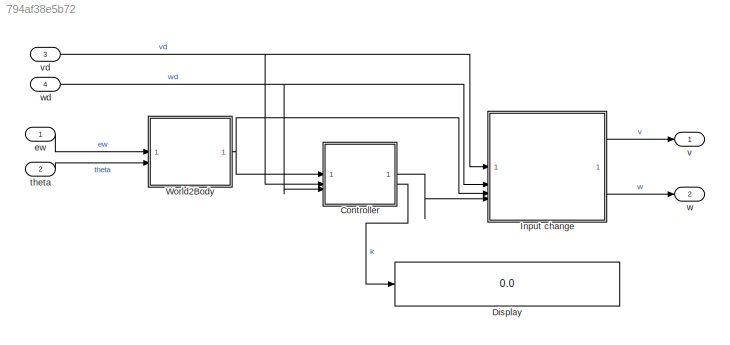
MODEL slx_794af38e5b72
KIND model
CONFIG AbsTol = auto
CONFIG EnableMultiTasking = off
CONFIG FixedStep = auto
CONFIG MaxStep = auto
CONFIG MinStep = auto
CONFIG RelTol = 1e-3
CONFIG SampleTimeConstraint = Unconstrained
CONFIG SolverName = VariableStepAuto
CONFIG StartTime = 0.0
CONFIG StopTime = 10.0
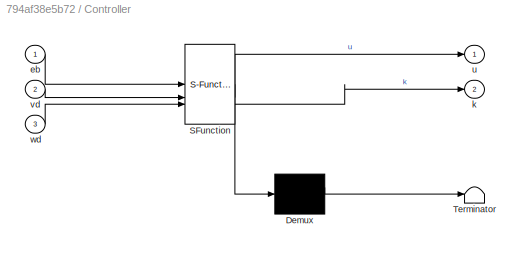
BLOCK [SubSystem] Controller
  ErrorFcn = Stateflow.Translate.translate
  PermitHierarchicalResolution = ExplicitOnly
  SFBlockType = MATLAB Function
  TreatAsAtomicUnit = on
BLOCK [Demux] Controller/ Demux 
  Outputs = 1
BLOCK [S-Function] Controller/ SFunction 
  EnableBusSupport = off
  FunctionName = sf_sfun
  PortCounts = [3 3]
  SFcnIsStateOwnerBlock = off
  SFunctionDeploymentMode = off
  Tag = Stateflow S-Function 4
BLOCK [Terminator] Controller/ Terminator 
BLOCK [Inport] Controller/eb
BLOCK [Outport] Controller/k
  Port = 2
BLOCK [Outport] Controller/u
BLOCK [Inport] Controller/vd
  Port = 2
BLOCK [Inport] Controller/wd
  Port = 3
BLOCK [Display] Display
  Decimation = 1
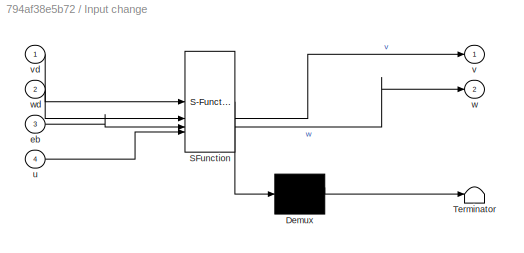
BLOCK [SubSystem] Input change
  ErrorFcn = Stateflow.Translate.translate
  PermitHierarchicalResolution = ExplicitOnly
  SFBlockType = MATLAB Function
  TreatAsAtomicUnit = on
BLOCK [Demux] Input change/ Demux 
  Outputs = 1
BLOCK [S-Function] Input change/ SFunction 
  EnableBusSupport = off
  FunctionName = sf_sfun
  PortCounts = [4 3]
  SFcnIsStateOwnerBlock = off
  SFunctionDeploymentMode = off
  Tag = Stateflow S-Function 3
BLOCK [Terminator] Input change/ Terminator 
BLOCK [Inport] Input change/eb
  Port = 3
BLOCK [Inport] Input change/u
  Port = 4
BLOCK [Outport] Input change/v
BLOCK [Inport] Input change/vd
BLOCK [Outport] Input change/w
  Port = 2
BLOCK [Inport] Input change/wd
  Port = 2
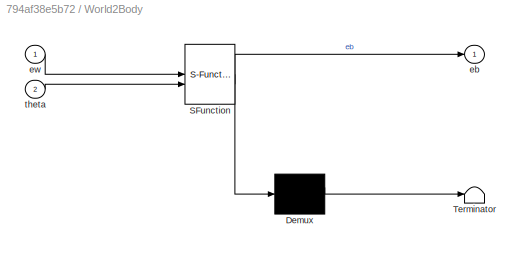
BLOCK [SubSystem] World2Body
  ErrorFcn = Stateflow.Translate.translate
  PermitHierarchicalResolution = ExplicitOnly
  SFBlockType = MATLAB Function
  TreatAsAtomicUnit = on
BLOCK [Demux] World2Body/ Demux 
  Outputs = 1
BLOCK [S-Function] World2Body/ SFunction 
  EnableBusSupport = off
  FunctionName = sf_sfun
  PortCounts = [2 2]
  SFcnIsStateOwnerBlock = off
  SFunctionDeploymentMode = off
  Tag = Stateflow S-Function 1
BLOCK [Terminator] World2Body/ Terminator 
BLOCK [Outport] World2Body/eb
BLOCK [Inport] World2Body/ew
BLOCK [Inport] World2Body/theta
  Port = 2
BLOCK [Inport] ew
  PortDimensions = 3
BLOCK [Inport] theta
  Port = 2
BLOCK [Outport] v
BLOCK [Inport] vd
  Port = 3
BLOCK [Outport] w
  Port = 2
BLOCK [Inport] wd
  Port = 4
LINE Controller:1 -> Input change:4
LINE Controller:2 -> Display:1
LINE Input change:1 -> v:1
LINE Input change:2 -> w:1
NET World2Body:1 -> Controller:1, Input change:3
LINE ew:1 -> World2Body:1
LINE theta:1 -> World2Body:2
NET vd:1 -> Controller:2, Input change:1
NET wd:1 -> Controller:3, Input change:2
note: NET lines group one-source signal fan-out (src -> all destinations, sorted); 1:1 wires keep LINE
CHART World2Body states=1 transitions=1
  STATE_LABEL 'eML_blk_kernel()'
  STATE_LABEL "SCRIPT:\nfunction eb = fcn(ew, theta)\ntheta = wrapToPi(theta);\new(3) = wrapToPi(ew(3));\nRbw = [cos(theta), -sin(theta); sin(theta), cos(theta)]'; % world to body\neb = [Rbw, [0; 0]; 0, 0, 1] * ew;\neb(3) = wrapToPi(eb(3));\n"
CHART Input change states=1 transitions=1
  STATE_LABEL 'eML_blk_kernel()'
  STATE_LABEL 'SCRIPT:\nfunction [v, w] = fcn(vd, wd, eb, u)\nv = vd * cos(eb(3)) - u(1);\nw = wd - u(2);\nend\n'
CHART Controller states=1 transitions=1
  STATE_LABEL 'eML_blk_kernel()'
  STATE_LABEL 'SCRIPT:\nfunction [u, k]= fcn(eb, vd, wd)\nk = calculate_gains_traj_lin(vd, wd);\n\n% u1 = -k(1) * eb(1);\n% u2 = -k(2) * eb(2) - k(3) * eb(3);\n% u = [u1, u2];\n\nu = -k * eb;\nend\n'
CHART  states=0 transitions=0
CHART  states=0 transitions=0
CHART  states=0 transitions=0
